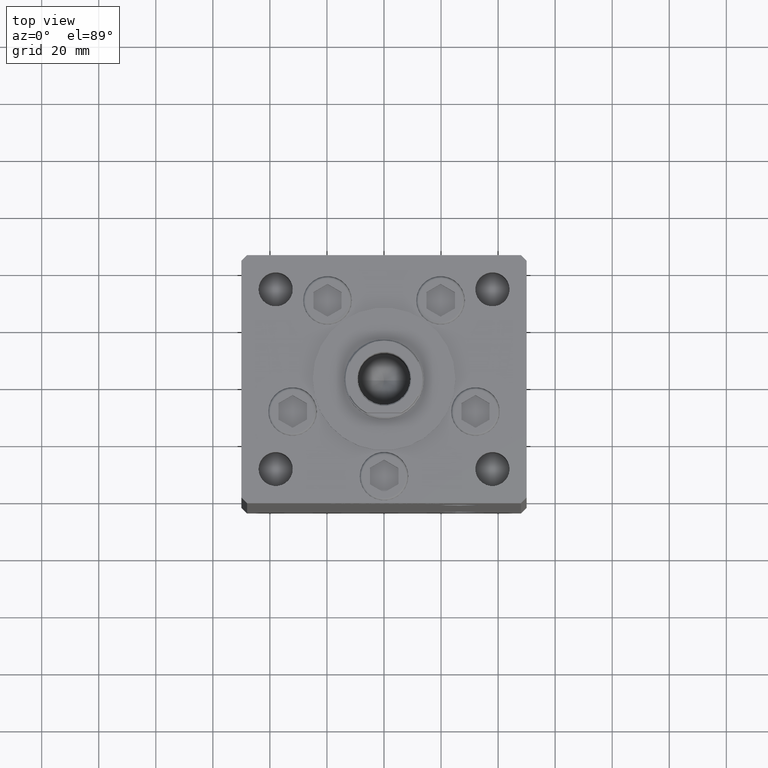
[diagram: clean part render]
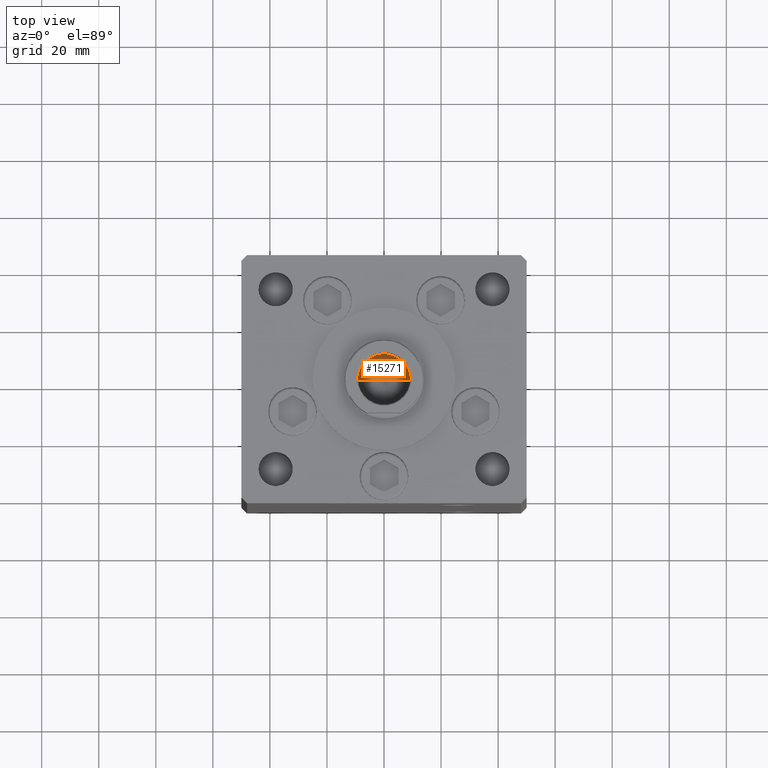
[diagram: same view with one face highlighted and labeled with its STEP entity id]
A machine part, top view. The second image highlights one B-rep face of the part: STEP entity #15271.
In plain terms, the highlighted conical surface has half-angle 59 deg.
Its self-contained STEP definition (entity closure, byte-faithful):
#1006 = EDGE_CURVE ( 'NONE', #43476, #43825, #42070, .T. ) ;
#1010 = CONICAL_SURFACE ( 'NONE', #49015, 9.249999999999994671, 1.029744258676652313 ) ;
#2902 = CARTESIAN_POINT ( 'NONE',  ( 0.000000000000000000, 0.000000000000000000, 150.2500000000000000 ) ) ;
#3252 = VECTOR ( 'NONE', #46284, 1000.000000000000000 ) ;
#3426 = CARTESIAN_POINT ( 'NONE',  ( 9.249999999999994671, 0.000000000000000000, 150.2500000000000000 ) ) ;
#3469 = EDGE_CURVE ( 'NONE', #43825, #7519, #21838, .T. ) ;
#5932 = CARTESIAN_POINT ( 'NONE',  ( 9.249999999999994671, 0.000000000000000000, 150.2500000000000000 ) ) ;
#7122 = DIRECTION ( 'NONE',  ( -0.000000000000000000, -0.000000000000000000, 1.000000000000000000 ) ) ;
#7168 = EDGE_CURVE ( 'NONE', #43476, #7519, #46851, .T. ) ;
#7519 = VERTEX_POINT ( 'NONE', #13823 ) ;
#8538 = DIRECTION ( 'NONE',  ( -0.000000000000000000, -0.000000000000000000, 1.000000000000000000 ) ) ;
#13823 = CARTESIAN_POINT ( 'NONE',  ( -9.249999999999994671, 1.132798289211300909E-15, 150.2500000000000000 ) ) ;
#15271 = ADVANCED_FACE ( 'NONE', ( #49163 ), #1010, .F. ) ;
#15336 = ORIENTED_EDGE ( 'NONE', *, *, #7168, .F. ) ;
#18100 = CARTESIAN_POINT ( 'NONE',  ( -1.046994375366439223E-14, 0.000000000000000000, 144.6920392739950501 ) ) ;
#21838 = CIRCLE ( 'NONE', #38703, 9.249999999999994671 ) ;
#23728 = DIRECTION ( 'NONE',  ( 1.000000000000000000, 0.000000000000000000, 0.000000000000000000 ) ) ;
#29569 = ORIENTED_EDGE ( 'NONE', *, *, #1006, .T. ) ;
#32788 = DIRECTION ( 'NONE',  ( 1.000000000000000000, 0.000000000000000000, 0.000000000000000000 ) ) ;
#38169 = DIRECTION ( 'NONE',  ( -0.8571673007021112234, 1.049727191138617340E-16, 0.5150380749100560429 ) ) ;
#38703 = AXIS2_PLACEMENT_3D ( 'NONE', #2902, #7122, #23728 ) ;
#39636 = VECTOR ( 'NONE', #38169, 1000.000000000000000 ) ;
#42070 = LINE ( 'NONE', #5932, #3252 ) ;
#42636 = CARTESIAN_POINT ( 'NONE',  ( -9.249999999999994671, 1.132798289211300909E-15, 150.2500000000000000 ) ) ;
#43476 = VERTEX_POINT ( 'NONE', #18100 ) ;
#43825 = VERTEX_POINT ( 'NONE', #3426 ) ;
#44680 = CARTESIAN_POINT ( 'NONE',  ( 0.000000000000000000, 0.000000000000000000, 150.2500000000000000 ) ) ;
#45865 = ORIENTED_EDGE ( 'NONE', *, *, #3469, .T. ) ;
#46284 = DIRECTION ( 'NONE',  ( 0.8571673007021112234, 0.000000000000000000, 0.5150380749100560429 ) ) ;
#46851 = LINE ( 'NONE', #42636, #39636 ) ;
#49015 = AXIS2_PLACEMENT_3D ( 'NONE', #44680, #8538, #32788 ) ;
#49163 = FACE_OUTER_BOUND ( 'NONE', #49785, .T. ) ;
#49785 = EDGE_LOOP ( 'NONE', ( #15336, #29569, #45865 ) ) ;